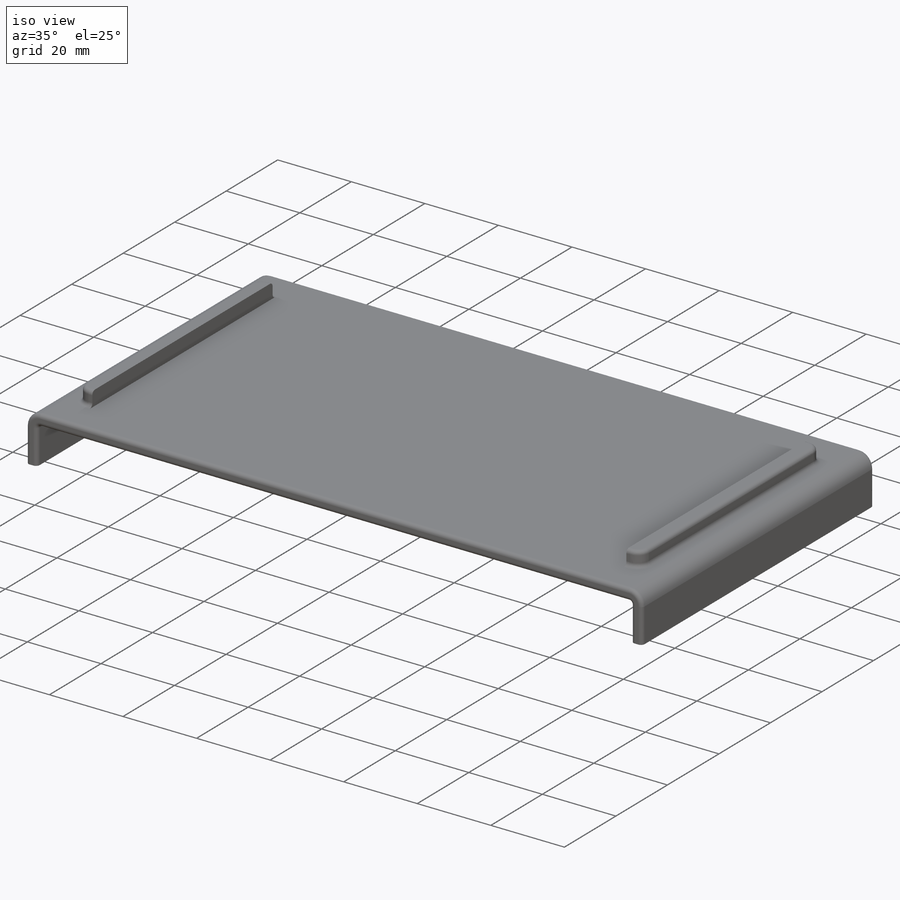
[diagram: iso view]
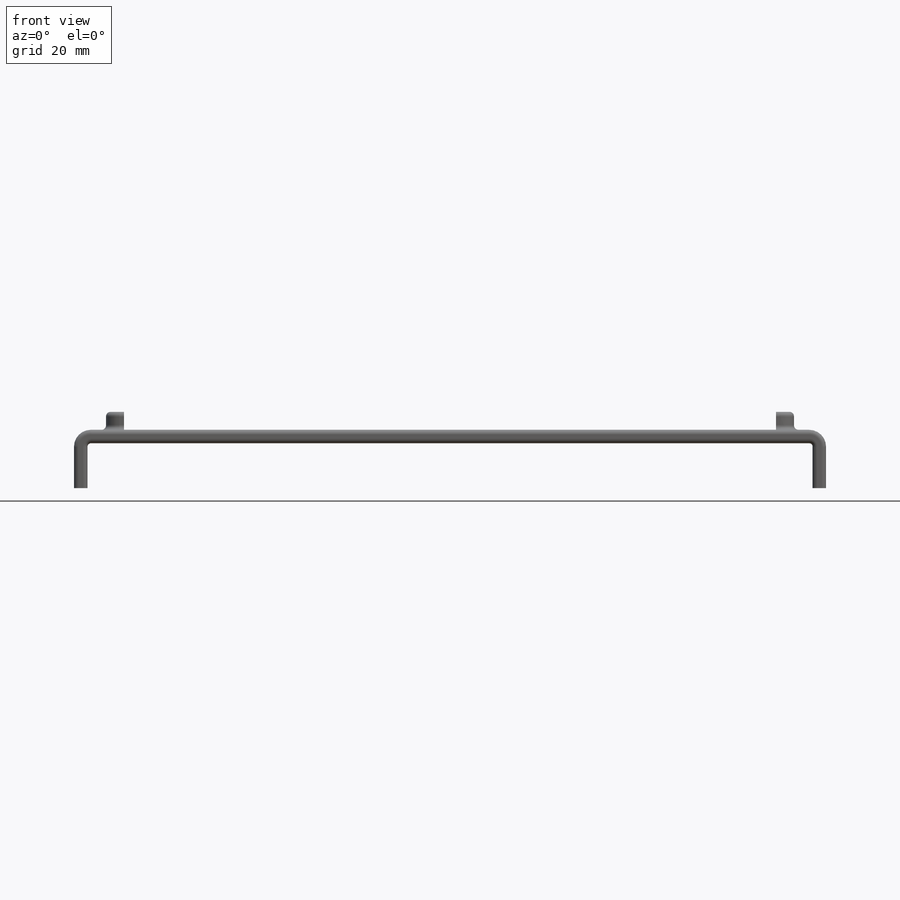
[diagram: front view]
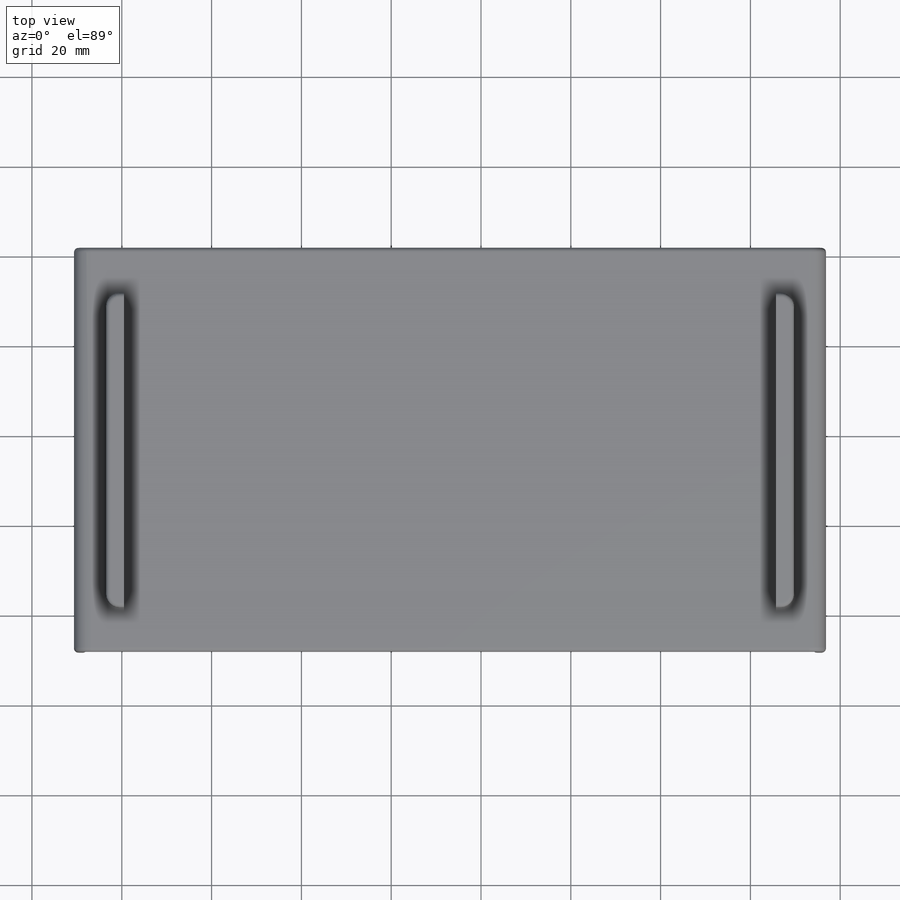
[diagram: top view]
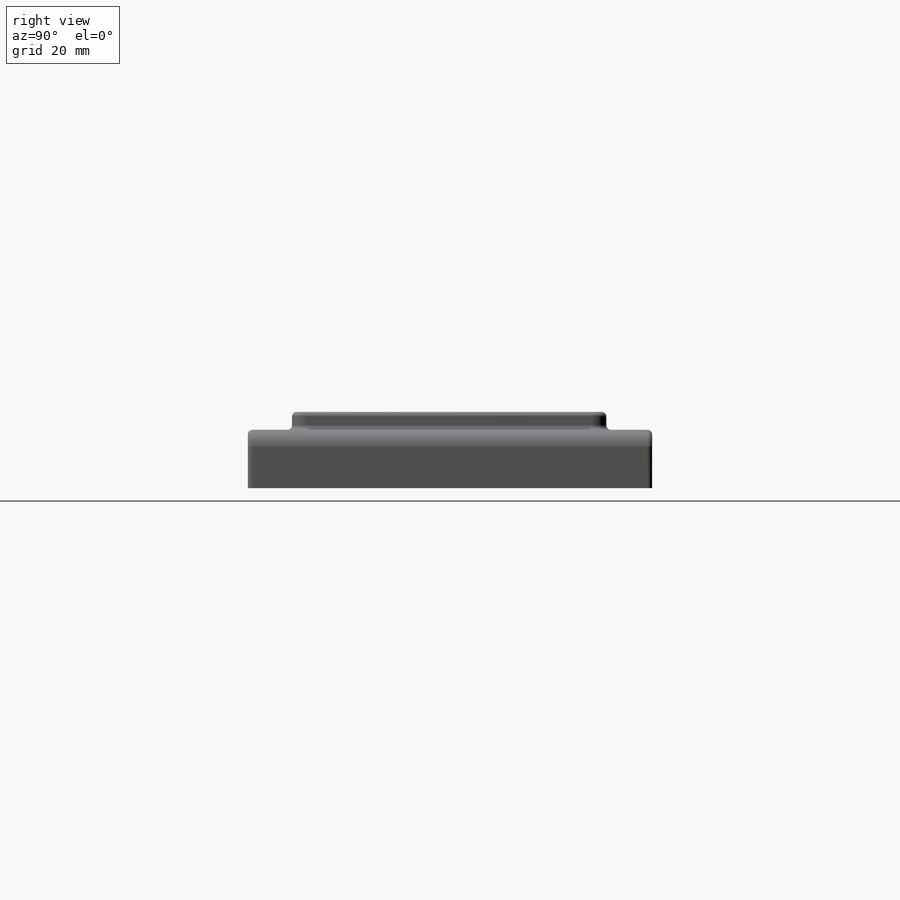
[diagram: right view]
SOLIDWORKS PART (.sldprt)
format: sldprt  version: not decoded by parser v0  size: 282,112 bytes
history: native  units: mm
features: sketch x5, fillet x4, plane x3, sheet_metal_op x3, material x1, extrude x1 + 3 further entries (+14 scaffold rows collapsed)
feature tree (34):
  scaffold x14  (default folders/planes/origin — collapsed)
  material  "Matériau <non spécifié>"
  plane  "Plan de face"
  plane  "Plan de dessus"
  plane  "Plan de droite"
  sketch  "Esquisse1"  dims[c1.D1=~55.804992mm c2.D1=90.0mm c2.D2=160.0mm]
  sheet_metal_op  "Tôlerie 1"  Epaisseur=3mm
  sheet_metal_op  "Tôle de base pliée1"
  sketch  "Esquisse5"  dims[c1.D1=0.7366mm c1.D4=90.0deg c1.D5=1.0 c1.D8=4.5mm c1.D9=4.5mm c2.D1=0.7366mm c2.D2=500.0mm c2.D3=0.0mm c2.D6=10.0mm c2.D7=10.0mm c2.Tôle pliée sur arête2=0.0]
  sketch  "Esquisse8"
  sheet_metal_op  "Pli d'arête2"
  fillet  "Congé1"  Radius=4mm
  sketch  "Esquisse9"  dims[D3=3.0mm D4=3.0mm D1=4.0mm D2=70.0mm D5=0.5mm]
  extrude  "Extrusion1"  Depth=4mm
  fillet  "Congé2"  Radius=1mm
  fillet  "Congé3"  Radius=1mm
  fillet  "Congé4"  Radius=1mm
  "Etat déplié1"
  sketch  "Lignes de pliage1"
  "Dépliage-<Pli d'arête2>1"
  "Transformation de l'esquisse1"
decode coverage: 9 of 13 modeling features carry decoded parameters; 3 rows unclassified (native names shown)
note: ~ marks probable driven/reference dimensions
note: suppression state not decoded; provenance and decode notes live in map.json
